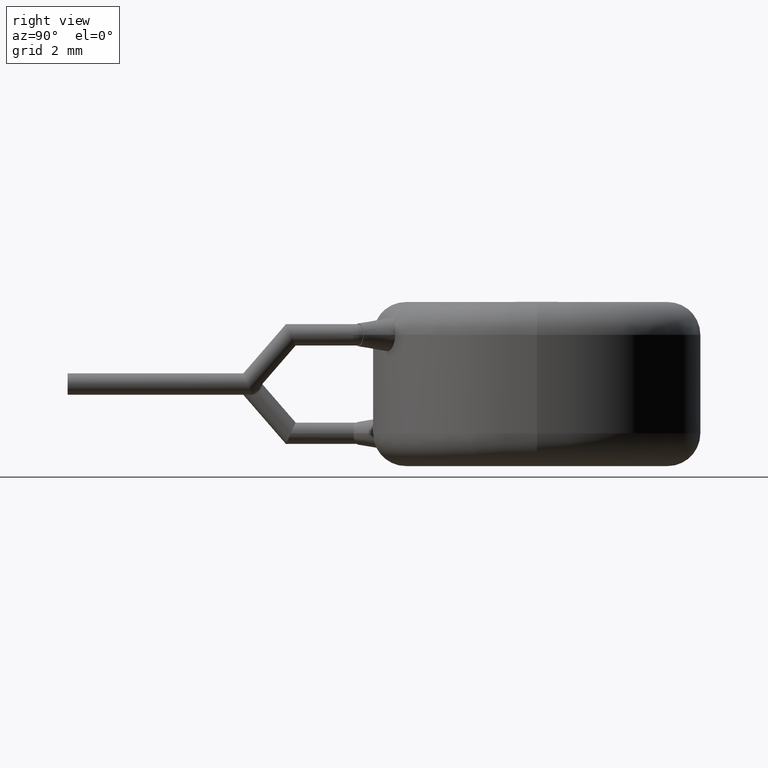
[diagram: clean part render]
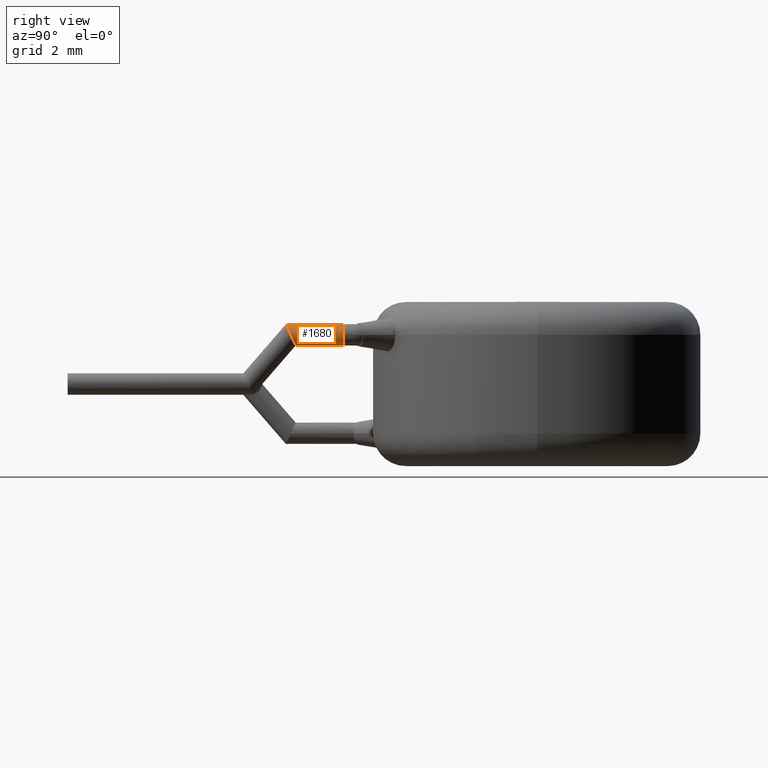
[diagram: same view with one face highlighted and labeled with its STEP entity id]
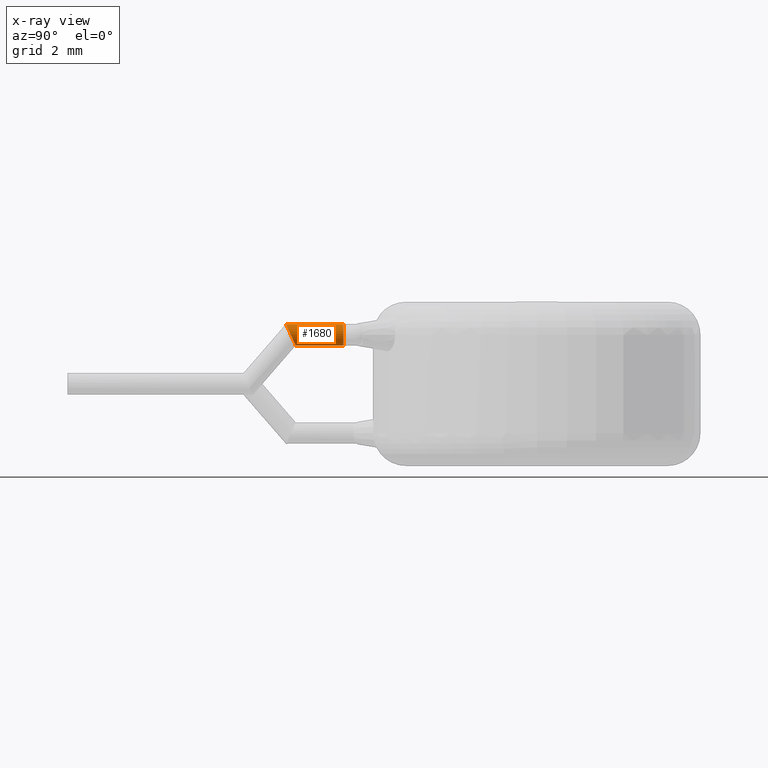
[diagram: x-ray of the same camera — body ghosted, the highlighted face saturated]
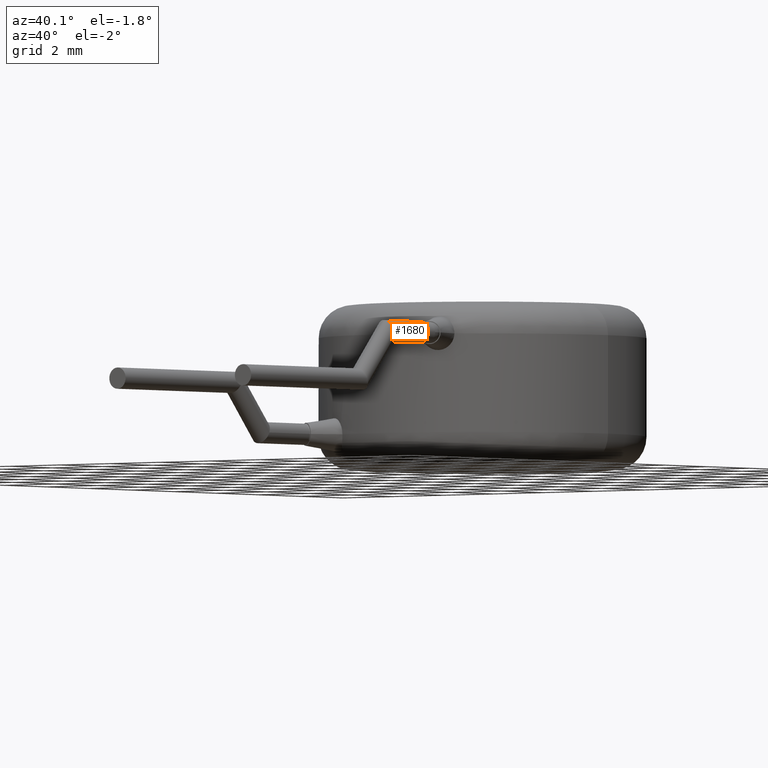
[diagram: same view with one face highlighted and labeled with its STEP entity id]
A machine part, right view. The second image highlights one B-rep face of the part: STEP entity #1680.
The next image is the same camera in x-ray: the body ghosted, the highlighted face saturated — about 0% of this face is hidden behind the body in this view.
A second angle (auxiliary view) of the same face is appended — the face is thin or edge-on in the first view.
In plain terms, the highlighted cylindrical surface (edge-blend (fillet) strip) has radius 0.325 mm, axis along (-0, 1, -0).
Its self-contained STEP definition (entity closure, byte-faithful):
#38 = EDGE_CURVE ( 'NONE', #2293, #1032, #49, .T. ) ;
#49 = LINE ( 'NONE', #1861, #3562 ) ;
#109 = DIRECTION ( 'NONE',  ( -0.0000000000000000000, 1.000000000000000000, -0.0000000000000000000 ) ) ;
#420 = EDGE_CURVE ( 'NONE', #2293, #3698, #3882, .T. ) ;
#469 = DIRECTION ( 'NONE',  ( 1.000000000000000000, -8.006416042969894400E-015, 0.0000000000000000000 ) ) ;
#947 = CARTESIAN_POINT ( 'NONE',  ( 2.499999999999999100, -7.648404386894384300, 4.324999999999999300 ) ) ;
#1004 = EDGE_CURVE ( 'NONE', #3698, #3121, #1443, .T. ) ;
#1032 = VERTEX_POINT ( 'NONE', #2638 ) ;
#1182 = DIRECTION ( 'NONE',  ( -7.105427357601001900E-015, -1.000000000000000000, 0.0000000000000000000 ) ) ;
#1186 = ORIENTED_EDGE ( 'NONE', *, *, #2584, .T. ) ;
#1253 = FACE_OUTER_BOUND ( 'NONE', #2812, .T. ) ;
#1369 = CARTESIAN_POINT ( 'NONE',  ( 2.499999999999999100, -5.900000000000016300, 4.325000000000000200 ) ) ;
#1443 = LINE ( 'NONE', #2982, #3118 ) ;
#1680 = ADVANCED_FACE ( 'NONE', ( #1253 ), #3194, .T. ) ;
#1721 = DIRECTION ( 'NONE',  ( 0.0000000000000000000, 0.0000000000000000000, 1.000000000000000000 ) ) ;
#1861 = CARTESIAN_POINT ( 'NONE',  ( 2.499999999999999100, -8.419238815542511700, 3.675000000000000700 ) ) ;
#1975 = ORIENTED_EDGE ( 'NONE', *, *, #38, .T. ) ;
#2293 = VERTEX_POINT ( 'NONE', #2732 ) ;
#2459 = CARTESIAN_POINT ( 'NONE',  ( 2.499999999999999100, -5.900000000000016300, 4.000000000000000000 ) ) ;
#2529 = CIRCLE ( 'NONE', #3885, 0.3249999999999993400 ) ;
#2565 = CARTESIAN_POINT ( 'NONE',  ( 2.499999999999999100, -7.351595613105620200, 3.675000000000000700 ) ) ;
#2577 = CARTESIAN_POINT ( 'NONE',  ( 3.149999999999998600, -7.648404386894384300, 4.325000000000000200 ) ) ;
#2584 = EDGE_CURVE ( 'NONE', #1032, #3121, #2529, .T. ) ;
#2638 = CARTESIAN_POINT ( 'NONE',  ( 2.499999999999999100, -5.900000000000016300, 3.675000000000000700 ) ) ;
#2732 = CARTESIAN_POINT ( 'NONE',  ( 2.499999999999999100, -7.351595613105620200, 3.675000000000000700 ) ) ;
#2812 = EDGE_LOOP ( 'NONE', ( #3724, #1975, #1186, #3513 ) ) ;
#2926 = CARTESIAN_POINT ( 'NONE',  ( 3.149999999999998600, -7.351595613105620200, 3.675000000000000700 ) ) ;
#2982 = CARTESIAN_POINT ( 'NONE',  ( 2.499999999999999100, -8.419238815542511700, 4.325000000000000200 ) ) ;
#3118 = VECTOR ( 'NONE', #3969, 1000.000000000000000 ) ;
#3121 = VERTEX_POINT ( 'NONE', #1369 ) ;
#3183 = DIRECTION ( 'NONE',  ( -0.0000000000000000000, 1.000000000000000000, -0.0000000000000000000 ) ) ;
#3194 = CYLINDRICAL_SURFACE ( 'NONE', #3783, 0.3249999999999997900 ) ;
#3513 = ORIENTED_EDGE ( 'NONE', *, *, #1004, .F. ) ;
#3562 = VECTOR ( 'NONE', #3183, 1000.000000000000000 ) ;
#3698 = VERTEX_POINT ( 'NONE', #4152 ) ;
#3724 = ORIENTED_EDGE ( 'NONE', *, *, #420, .F. ) ;
#3783 = AXIS2_PLACEMENT_3D ( 'NONE', #3997, #109, #1721 ) ;
#3882 =( BOUNDED_CURVE ( )  B_SPLINE_CURVE ( 3, ( #2565, #2926, #2577, #947 ),
 .UNSPECIFIED., .F., .F. ) 
 B_SPLINE_CURVE_WITH_KNOTS ( ( 4, 4 ),
 ( 0.0000000000000000000, 3.141592653589793100 ),
 .UNSPECIFIED. ) 
 CURVE ( )  GEOMETRIC_REPRESENTATION_ITEM ( )  RATIONAL_B_SPLINE_CURVE ( ( 1.000000000000000000, 0.3333333333333333700, 0.3333333333333333700, 1.000000000000000000 ) ) 
 REPRESENTATION_ITEM ( '' )  );
#3885 = AXIS2_PLACEMENT_3D ( 'NONE', #2459, #1182, #469 ) ;
#3969 = DIRECTION ( 'NONE',  ( -0.0000000000000000000, 1.000000000000000000, -0.0000000000000000000 ) ) ;
#3997 = CARTESIAN_POINT ( 'NONE',  ( 2.499999999999999100, -8.419238815542511700, 4.000000000000000000 ) ) ;
#4152 = CARTESIAN_POINT ( 'NONE',  ( 2.499999999999999100, -7.648404386894384300, 4.324999999999999300 ) ) ;